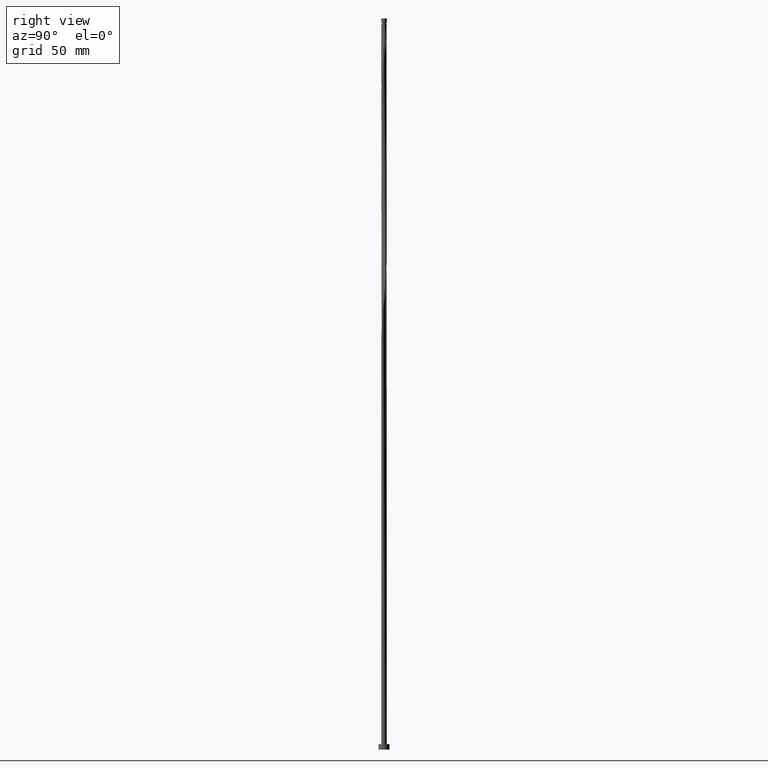
[diagram: clean part render]
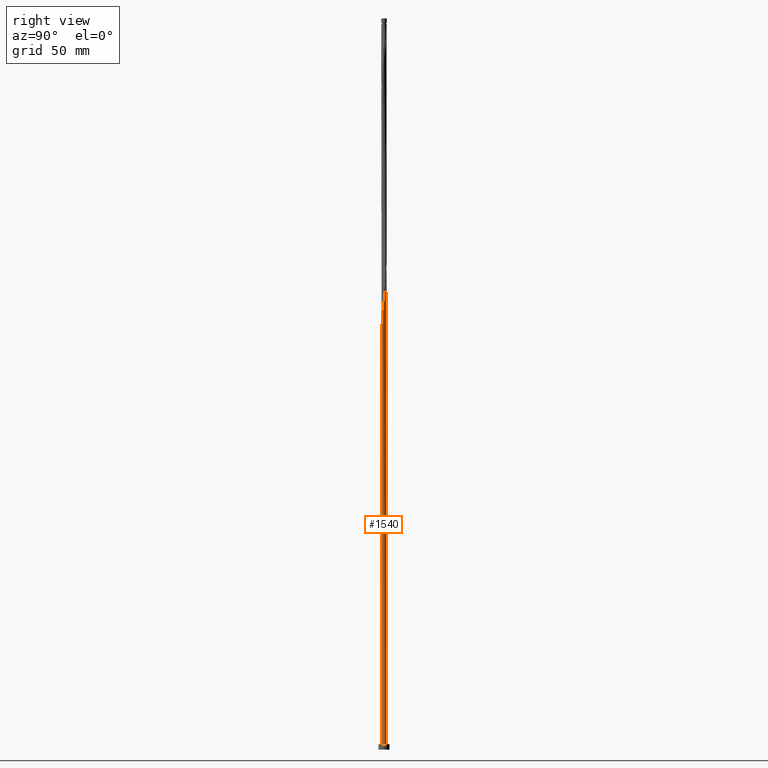
[diagram: same view with one face highlighted and labeled with its STEP entity id]
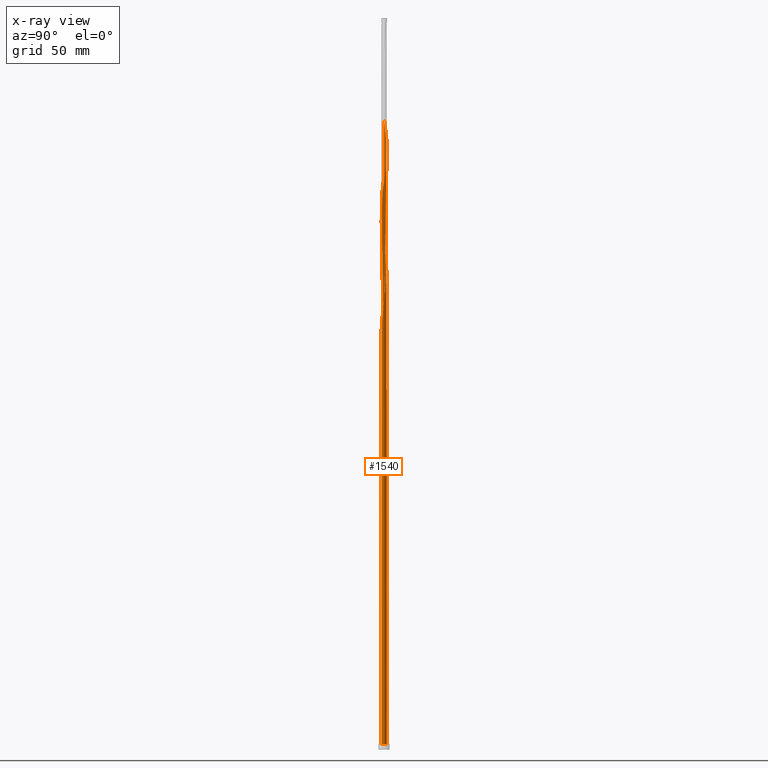
[diagram: x-ray of the same camera — body ghosted, the highlighted face saturated]
A machine part, right view. The second image highlights one B-rep face of the part: STEP entity #1540.
The next image is the same camera in x-ray: the body ghosted, the highlighted face saturated — about 0% of this face is hidden behind the body in this view.
In plain terms, the highlighted cylindrical surface (bore or boss wall) has radius 1.5 mm, axis along (-0, -0, -1).
Its self-contained STEP definition (entity closure, byte-faithful):
#10 = CARTESIAN_POINT ( 'NONE',  ( 1.372223850084356211, -0.6259850085017490962, 240.1915257951825993 ) ) ;
#17 = CARTESIAN_POINT ( 'NONE',  ( -0.4791193468187441296, -1.430139915222719438, 224.6359702396269995 ) ) ;
#35 = CARTESIAN_POINT ( 'NONE',  ( -0.1713066316759795926, -1.498502440289337212, 293.5248591285158568 ) ) ;
#45 = CARTESIAN_POINT ( 'NONE',  ( -0.8705927413954922534, 1.221502467713220463, 267.9693035729602570 ) ) ;
#48 = CARTESIAN_POINT ( 'NONE',  ( -1.305812670777218187, 0.7381417674387958927, 210.1915257951825993 ) ) ;
#57 = CARTESIAN_POINT ( 'NONE',  ( 0.01365681319226772807, 1.499937829196076544, 261.3026369062936283 ) ) ;
#72 = AXIS2_PLACEMENT_3D ( 'NONE', #147, #1607, #849 ) ;
#84 = CARTESIAN_POINT ( 'NONE',  ( 0.2984962311319902528, 1.469999999999999085, 196.8581924618492565 ) ) ;
#96 = DIRECTION ( 'NONE',  ( 0.000000000000000000, 0.000000000000000000, 1.000000000000000000 ) ) ;
#104 = CARTESIAN_POINT ( 'NONE',  ( -0.7422076586513574048, 1.313005452025443054, 333.5248591285159137 ) ) ;
#106 = CARTESIAN_POINT ( 'NONE',  ( -1.105532844612588717, 1.013803299206904596, 203.5248591285159137 ) ) ;
#115 = EDGE_CURVE ( 'NONE', #1210, #1116, #626, .T. ) ;
#117 = CARTESIAN_POINT ( 'NONE',  ( -1.383394496761529702, -0.6008953252765262265, 215.7470813507380853 ) ) ;
#128 = CARTESIAN_POINT ( 'NONE',  ( -0.7659922474358249467, -1.299273413288166035, 222.4137480174048562 ) ) ;
#147 = CARTESIAN_POINT ( 'NONE',  ( 0.000000000000000000, 0.000000000000000000, 3.000000000000000000 ) ) ;
#176 =( BOUNDED_CURVE ( )  B_SPLINE_CURVE ( 2, ( #551, #1147, #1587, #1717, #996, #253, #48, #1420, #537, #845, #231, #373, #1870, #828, #1562, #703, #223, #1131, #384 ),
 .UNSPECIFIED., .F., .T. ) 
 B_SPLINE_CURVE_WITH_KNOTS ( ( 3, 2, 2, 2, 2, 2, 2, 2, 2, 3 ),
 ( 0.9295286012773112949, 0.9333333333333333481, 0.9416666666666666519, 0.9499999999999999556, 0.9583333333333333703, 0.9666666666666666741, 0.9749999999999999778, 0.9833333333333332815, 0.9916666666666666963, 1.000000000000000000 ),
 .UNSPECIFIED. ) 
 CURVE ( )  GEOMETRIC_REPRESENTATION_ITEM ( )  RATIONAL_B_SPLINE_CURVE ( ( 0.9066196499552947596, 0.9068171577857073729, 0.9090909090910066492, 0.9041108139712544789, 0.9090909090910066492, 0.9041108139712544789, 0.9090909090910066492, 0.9041108139712544789, 0.9090909090910066492, 0.9041108139712544789, 0.9090909090910066492, 0.9041108139712544789, 0.9090909090910066492, 0.9041108139712544789, 0.9090909090910066492, 0.9041108139712544789, 0.9090909090910066492, 0.9041108139712544789, 0.9090909090910066492 ) ) 
 REPRESENTATION_ITEM ( '' )  );
#177 = CARTESIAN_POINT ( 'NONE',  ( -0.01365681319226751469, -1.499937829196076544, 294.6359702396269995 ) ) ;
#187 = CARTESIAN_POINT ( 'NONE',  ( 0.6225557971272843716, 1.364706664255443069, 323.5248591285158568 ) ) ;
#195 = CARTESIAN_POINT ( 'NONE',  ( 0.4529994569725341869, -1.438626781897188067, 297.9693035729603139 ) ) ;
#204 = CARTESIAN_POINT ( 'NONE',  ( -1.372223850084356211, 0.6259850085017488741, 273.5248591285159137 ) ) ;
#214 = CARTESIAN_POINT ( 'NONE',  ( -0.1439930052914443204, 1.501373218102816098, 329.0804146840714566 ) ) ;
#222 =( BOUNDED_CURVE ( )  B_SPLINE_CURVE ( 2, ( #635, #1236, #844, #1266, #530, #981, #106, #229, #1400, #1561, #1543, #953, #399, #1691, #1418 ),
 .UNSPECIFIED., .F., .T. ) 
 B_SPLINE_CURVE_WITH_KNOTS ( ( 3, 2, 2, 2, 2, 2, 2, 3 ),
 ( 0.000000000000000000, 0.008333333333333303727, 0.01666666666666671848, 0.02500000000000002220, 0.03333333333333332593, 0.04166666666666662966, 0.05000000000000004441, 0.05452860127731141288 ),
 .UNSPECIFIED. ) 
 CURVE ( )  GEOMETRIC_REPRESENTATION_ITEM ( )  RATIONAL_B_SPLINE_CURVE ( ( 0.9090909090910129775, 0.9041108139712609182, 0.9090909090910129775, 0.9041108139712609182, 0.9090909090910129775, 0.9041108139712609182, 0.9090909090910129775, 0.9041108139712609182, 0.9090909090910129775, 0.9041108139712609182, 0.9090909090910129775, 0.9041108139712609182, 0.9090909090910129775, 0.9063845652765600835, 0.9066196499553011989 ) ) 
 REPRESENTATION_ITEM ( '' )  );
#223 = CARTESIAN_POINT ( 'NONE',  ( -0.01365681319226663692, 1.499937829196074102, 199.0804146840714566 ) ) ;
#229 = CARTESIAN_POINT ( 'NONE',  ( -1.212087865085549776, 0.8976071150128108744, 204.6359702396270563 ) ) ;
#231 = CARTESIAN_POINT ( 'NONE',  ( -0.8926899293185865947, 1.205447920937763984, 205.7470813507381990 ) ) ;
#236 = FACE_OUTER_BOUND ( 'NONE', #496, .T. ) ;
#247 = DIRECTION ( 'NONE',  ( -1.000000000000000000, 0.000000000000000000, 0.000000000000000000 ) ) ;
#253 = CARTESIAN_POINT ( 'NONE',  ( -1.383394496761527037, 0.6008953252765258934, 211.3026369062936851 ) ) ;
#275 = CARTESIAN_POINT ( 'NONE',  ( -1.500000000000000222, 7.773176018745326149E-16, 215.6503023720374586 ) ) ;
#278 = CARTESIAN_POINT ( 'NONE',  ( 0.4529994569725341869, -1.438626781897188067, 231.3026369062936851 ) ) ;
#298 = CARTESIAN_POINT ( 'NONE',  ( 0.8705927413954920313, -1.221502467713221129, 234.6359702396269995 ) ) ;
#310 = CARTESIAN_POINT ( 'NONE',  ( -0.7659922474358249467, -1.299273413288166035, 289.0804146840715134 ) ) ;
#312 = LINE ( 'NONE', #761, #689 ) ;
#320 = CARTESIAN_POINT ( 'NONE',  ( 1.123809227997131455, 0.9935053190942145784, 319.0804146840713429 ) ) ;
#322 = DIRECTION ( 'NONE',  ( -0.000000000000000000, -0.000000000000000000, -1.000000000000000000 ) ) ;
#332 = CARTESIAN_POINT ( 'NONE',  ( -0.6225557971272842606, -1.364706664255443069, 290.1915257951825993 ) ) ;
#342 = CARTESIAN_POINT ( 'NONE',  ( 0.9989778241396267688, -1.129999483400998761, 302.4137480174047710 ) ) ;
#350 = CARTESIAN_POINT ( 'NONE',  ( -1.212087865085549776, 0.8976071150128108744, 271.3026369062937420 ) ) ;
#359 = VERTEX_POINT ( 'NONE', #275 ) ;
#365 = CARTESIAN_POINT ( 'NONE',  ( -0.2984962311319896422, 1.470000000000001084, 196.8581924618492565 ) ) ;
#373 = CARTESIAN_POINT ( 'NONE',  ( -0.7659922474358235034, 1.299273413288164702, 204.6359702396270279 ) ) ;
#378 = VERTEX_POINT ( 'NONE', #1432 ) ;
#384 = CARTESIAN_POINT ( 'NONE',  ( 0.2984962311319902528, 1.469999999999999085, 196.8581924618492565 ) ) ;
#391 = CARTESIAN_POINT ( 'NONE',  ( -0.5976035578119461844, 1.375816116961315005, 332.4137480174048278 ) ) ;
#399 = CARTESIAN_POINT ( 'NONE',  ( -1.490293487130534000, 0.1703681960235497728, 210.1915257951825140 ) ) ;
#402 = EDGE_CURVE ( 'NONE', #359, #683, #176, .T. ) ;
#410 = CARTESIAN_POINT ( 'NONE',  ( 0.6225557971272843716, 1.364706664255443069, 256.8581924618492280 ) ) ;
#422 = CARTESIAN_POINT ( 'NONE',  ( 0.7422076586513574048, -1.313005452025443276, 233.5248591285159137 ) ) ;
#432 = CARTESIAN_POINT ( 'NONE',  ( 1.228230844792911114, 0.8753882096010662250, 251.3026369062936851 ) ) ;
#436 = CARTESIAN_POINT ( 'NONE',  ( -1.500000000000000222, 0.000000000000000000, 3.000000000000000000 ) ) ;
#445 = CARTESIAN_POINT ( 'NONE',  ( 1.493148538522776292, 0.1432041965422210794, 245.7470813507380853 ) ) ;
#459 = CARTESIAN_POINT ( 'NONE',  ( 1.292155857584952328, -0.7617960617572802073, 305.7470813507380853 ) ) ;
#470 = CARTESIAN_POINT ( 'NONE',  ( 1.372223850084356211, -0.6259850085017490962, 306.8581924618493417 ) ) ;
#478 = CARTESIAN_POINT ( 'NONE',  ( -1.228230844792910892, -0.8753882096010667802, 284.6359702396269995 ) ) ;
#491 = CARTESIAN_POINT ( 'NONE',  ( -0.4791193468187441296, -1.430139915222719438, 291.3026369062936283 ) ) ;
#496 = EDGE_LOOP ( 'NONE', ( #1272, #1874, #1283, #543, #1100, #1359, #1138, #1769, #639 ) ) ;
#499 = CARTESIAN_POINT ( 'NONE',  ( 1.478097170958370121, 0.3001404318217207323, 313.5248591285159137 ) ) ;
#518 = DIRECTION ( 'NONE',  ( -1.000000000000000000, 0.000000000000000000, 0.000000000000000000 ) ) ;
#529 = CARTESIAN_POINT ( 'NONE',  ( -0.9989778241396271019, 1.129999483400998539, 335.7470813507380285 ) ) ;
#530 = CARTESIAN_POINT ( 'NONE',  ( -0.8705927413954922534, 1.221502467713220463, 201.3026369062936851 ) ) ;
#534 = CARTESIAN_POINT ( 'NONE',  ( -1.372223850084356211, 0.6259850085017488741, 340.1915257951825993 ) ) ;
#537 = CARTESIAN_POINT ( 'NONE',  ( -1.123809227997129234, 0.9935053190942145784, 207.9693035729603992 ) ) ;
#543 = ORIENTED_EDGE ( 'NONE', *, *, #1563, .T. ) ;
#545 = DIRECTION ( 'NONE',  ( -0.000000000000000000, -0.000000000000000000, -1.000000000000000000 ) ) ;
#551 = CARTESIAN_POINT ( 'NONE',  ( -1.500000000000000222, 7.773176018745325163E-16, 215.6503023720374586 ) ) ;
#572 = VECTOR ( 'NONE', #834, 1000.000000000000000 ) ;
#573 = CARTESIAN_POINT ( 'NONE',  ( 1.430745833859950134, 0.4505178785491230631, 247.9693035729603423 ) ) ;
#576 = EDGE_CURVE ( 'NONE', #378, #359, #312, .T. ) ;
#590 = CARTESIAN_POINT ( 'NONE',  ( 1.472387068173885982, -0.3270043533098239696, 242.4137480174047994 ) ) ;
#601 = CARTESIAN_POINT ( 'NONE',  ( 0.1439930052914451253, -1.501373218102815876, 229.0804146840714566 ) ) ;
#604 = EDGE_CURVE ( 'NONE', #1340, #1366, #222, .T. ) ;
#611 = CARTESIAN_POINT ( 'NONE',  ( -1.123809227997130566, -0.9935053190942152446, 285.7470813507380853 ) ) ;
#621 = CARTESIAN_POINT ( 'NONE',  ( -1.472387068173886204, 0.3270043533098230260, 275.7470813507380853 ) ) ;
#624 = CARTESIAN_POINT ( 'NONE',  ( -1.500000000000002220, -1.046389079446479054E-16, 211.3994158849943688 ) ) ;
#626 = CIRCLE ( 'NONE', #72, 1.500000000000000222 ) ;
#633 = CARTESIAN_POINT ( 'NONE',  ( 0.3252129892473625827, 1.464321177756027659, 259.0804146840714566 ) ) ;
#635 = CARTESIAN_POINT ( 'NONE',  ( -0.2984962311319896422, 1.470000000000001084, 196.8581924618492565 ) ) ;
#639 = ORIENTED_EDGE ( 'NONE', *, *, #402, .F. ) ;
#642 = CARTESIAN_POINT ( 'NONE',  ( 0.1439930052914451253, -1.501373218102815876, 295.7470813507380285 ) ) ;
#652 = CARTESIAN_POINT ( 'NONE',  ( -1.490293487130534000, 0.1703681960235497728, 276.8581924618491144 ) ) ;
#665 = CIRCLE ( 'NONE', #848, 1.500000000000000222 ) ;
#669 = CARTESIAN_POINT ( 'NONE',  ( -1.490293487130534000, 0.1703681960235497728, 343.5248591285158568 ) ) ;
#675 = CARTESIAN_POINT ( 'NONE',  ( -0.2984962311319896977, 1.470000000000001084, 330.1915257951825993 ) ) ;
#683 = VERTEX_POINT ( 'NONE', #84 ) ;
#689 = VECTOR ( 'NONE', #322, 1000.000000000000000 ) ;
#703 = CARTESIAN_POINT ( 'NONE',  ( -0.1713066316759788987, 1.498502440289334992, 200.1915257951825708 ) ) ;
#713 = CARTESIAN_POINT ( 'NONE',  ( 1.422305459129120875, -0.4764946809057865607, 241.3026369062936567 ) ) ;
#727 = CARTESIAN_POINT ( 'NONE',  ( -1.500000000000002220, -0.07176599893012591824, 211.9079644105584350 ) ) ;
#736 = CARTESIAN_POINT ( 'NONE',  ( -1.478097170958370121, -0.3001404318217209544, 213.5248591285159705 ) ) ;
#758 = CARTESIAN_POINT ( 'NONE',  ( 1.383394496761530146, 0.6008953252765254494, 315.7470813507381422 ) ) ;
#761 = CARTESIAN_POINT ( 'NONE',  ( -1.500000000000000222, 0.000000000000000000, 400.0000000000000000 ) ) ;
#769 = CARTESIAN_POINT ( 'NONE',  ( 1.105532844612588717, -1.013803299206904596, 303.5248591285159137 ) ) ;
#776 = CARTESIAN_POINT ( 'NONE',  ( 0.4791193468187441851, 1.430139915222719216, 324.6359702396270563 ) ) ;
#781 = EDGE_CURVE ( 'NONE', #1340, #683, #665, .T. ) ;
#788 = CARTESIAN_POINT ( 'NONE',  ( 1.212087865085549332, -0.8976071150128110965, 304.6359702396269427 ) ) ;
#800 = CARTESIAN_POINT ( 'NONE',  ( -1.019387611201352017, -1.111622428587364375, 286.8581924618491144 ) ) ;
#809 = CYLINDRICAL_SURFACE ( 'NONE', #1234, 1.500000000000000222 ) ;
#810 = DIRECTION ( 'NONE',  ( 0.000000000000000000, -0.000000000000000000, -1.000000000000000000 ) ) ;
#828 = CARTESIAN_POINT ( 'NONE',  ( -0.4791193468187426308, 1.430139915222717883, 202.4137480174048562 ) ) ;
#834 = DIRECTION ( 'NONE',  ( -0.000000000000000000, -0.000000000000000000, -1.000000000000000000 ) ) ;
#844 = CARTESIAN_POINT ( 'NONE',  ( -0.5976035578119461844, 1.375816116961315005, 199.0804146840714282 ) ) ;
#845 = CARTESIAN_POINT ( 'NONE',  ( -1.019387611201350685, 1.111622428587362599, 206.8581924618493133 ) ) ;
#848 = AXIS2_PLACEMENT_3D ( 'NONE', #990, #810, #247 ) ;
#849 = DIRECTION ( 'NONE',  ( 1.000000000000000000, 0.000000000000000000, 0.000000000000000000 ) ) ;
#864 = CARTESIAN_POINT ( 'NONE',  ( -1.430745833859950134, -0.4505178785491234517, 214.6359702396270563 ) ) ;
#871 = CARTESIAN_POINT ( 'NONE',  ( 1.478097170958370121, 0.3001404318217207323, 246.8581924618492280 ) ) ;
#880 =( BOUNDED_CURVE ( )  B_SPLINE_CURVE ( 2, ( #1344, #727, #1305, #736, #864, #117, #1619, #1025, #1324, #1450, #890, #128, #1183, #17, #1603, #1878, #1045, #601, #1163, #278, #1729, #422, #298, #1475, #1016, #1592, #1334, #10, #713, #590, #1313, #1747, #445, #871, #573, #1174, #1740, #432, #1036, #1192, #1002, #1205, #410, #1757, #633, #940, #57, #897, #1093, #1075, #1646, #1370, #45, #909, #1233, #350, #1496, #204, #1390, #621, #652, #1086, #1214, #1485, #1806, #1665, #1524, #478, #611, #800, #1380, #310, #332, #491, #1782, #35, #177, #642, #1815, #195, #1515, #1654, #1772, #342, #769, #788, #459, #470, #1056, #1225, #1241, #1362, #1629, #499, #1637, #758, #1353, #1062, #320, #1793, #919, #1506, #187, #776, #1842, #950, #989, #214, #675, #1850, #391, #104, #1140, #529, #979, #1858, #970, #534, #1568, #1404, #669, #1286, #1265 ),
 .UNSPECIFIED., .F., .T. ) 
 B_SPLINE_CURVE_WITH_KNOTS ( ( 3, 2, 2, 2, 2, 2, 2, 2, 2, 2, 2, 2, 2, 2, 2, 2, 2, 2, 2, 2, 2, 2, 2, 2, 2, 2, 2, 2, 2, 2, 2, 2, 2, 2, 2, 2, 2, 2, 2, 2, 2, 2, 2, 2, 2, 2, 2, 2, 2, 2, 2, 2, 2, 2, 2, 2, 2, 2, 2, 2, 2, 3 ),
 ( 0.05452860127731141288, 0.05833333333333334814, 0.06666666666666665186, 0.07499999999999995559, 0.08333333333333337034, 0.09166666666666667407, 0.09999999999999997780, 0.1083333333333332815, 0.1166666666666666963, 0.1250000000000000000, 0.1333333333333333037, 0.1416666666666667185, 0.1500000000000000222, 0.1583333333333333259, 0.1666666666666666297, 0.1750000000000000444, 0.1833333333333333481, 0.1916666666666666519, 0.1999999999999999556, 0.2083333333333333703, 0.2166666666666666741, 0.2249999999999999778, 0.2333333333333332815, 0.2416666666666666963, 0.2500000000000000000, 0.2583333333333333037, 0.2666666666666667185, 0.2750000000000000222, 0.2833333333333333259, 0.2916666666666666297, 0.3000000000000000444, 0.3083333333333333481, 0.3166666666666666519, 0.3249999999999999556, 0.3333333333333333703, 0.3416666666666666741, 0.3499999999999999778, 0.3583333333333332815, 0.3666666666666666963, 0.3750000000000000000, 0.3833333333333333037, 0.3916666666666667185, 0.4000000000000000222, 0.4083333333333333259, 0.4166666666666666297, 0.4250000000000000444, 0.4333333333333333481, 0.4416666666666666519, 0.4499999999999999556, 0.4583333333333333703, 0.4666666666666666741, 0.4749999999999999778, 0.4833333333333332815, 0.4916666666666666963, 0.5000000000000000000, 0.5083333333333333037, 0.5166666666666666075, 0.5250000000000000222, 0.5333333333333333259, 0.5416666666666667407, 0.5500000000000000444, 0.5545286012773112949 ),
 .UNSPECIFIED. ) 
 CURVE ( )  GEOMETRIC_REPRESENTATION_ITEM ( )  RATIONAL_B_SPLINE_CURVE ( ( 0.9066196499553011989, 0.9068171577857138121, 0.9090909090910129775, 0.9041108139712609182, 0.9090909090910129775, 0.9041108139712609182, 0.9090909090910129775, 0.9041108139712609182, 0.9090909090910129775, 0.9041108139712609182, 0.9090909090910129775, 0.9041108139712609182, 0.9090909090910129775, 0.9041108139712609182, 0.9090909090910129775, 0.9041108139712609182, 0.9090909090910129775, 0.9041108139712609182, 0.9090909090910129775, 0.9041108139712609182, 0.9090909090910129775, 0.9041108139712609182, 0.9090909090910129775, 0.9041108139712609182, 0.9090909090910129775, 0.9041108139712609182, 0.9090909090910129775, 0.9041108139712609182, 0.9090909090910129775, 0.9041108139712609182, 0.9090909090910129775, 0.9041108139712609182, 0.9090909090910129775, 0.9041108139712609182, 0.9090909090910129775, 0.9041108139712609182, 0.9090909090910129775, 0.9041108139712609182, 0.9090909090910129775, 0.9041108139712609182, 0.9090909090910129775, 0.9041108139712609182, 0.9090909090910129775, 0.9041108139712609182, 0.9090909090910129775, 0.9041108139712609182, 0.9090909090910129775, 0.9041108139712609182, 0.9090909090910129775, 0.9041108139712609182, 0.9090909090910129775, 0.9041108139712609182, 0.9090909090910129775, 0.9041108139712609182, 0.9090909090910129775, 0.9041108139712609182, 0.9090909090910129775, 0.9041108139712609182, 0.9090909090910129775, 0.9041108139712609182, 0.9090909090910129775, 0.9041108139712609182, 0.9090909090910129775, 0.9041108139712609182, 0.9090909090910129775, 0.9041108139712609182, 0.9090909090910129775, 0.9041108139712609182, 0.9090909090910129775, 0.9041108139712609182, 0.9090909090910129775, 0.9041108139712609182, 0.9090909090910129775, 0.9041108139712609182, 0.9090909090910129775, 0.9041108139712609182, 0.9090909090910129775, 0.9041108139712609182, 0.9090909090910129775, 0.9041108139712609182, 0.9090909090910129775, 0.9041108139712609182, 0.9090909090910129775, 0.9041108139712609182, 0.9090909090910129775, 0.9041108139712609182, 0.9090909090910129775, 0.9041108139712609182, 0.9090909090910129775, 0.9041108139712609182, 0.9090909090910129775, 0.9041108139712609182, 0.9090909090910129775, 0.9041108139712609182, 0.9090909090910129775, 0.9041108139712609182, 0.9090909090910129775, 0.9041108139712609182, 0.9090909090910129775, 0.9041108139712609182, 0.9090909090910129775, 0.9041108139712609182, 0.9090909090910129775, 0.9041108139712609182, 0.9090909090910129775, 0.9041108139712609182, 0.9090909090910129775, 0.9041108139712609182, 0.9090909090910129775, 0.9041108139712609182, 0.9090909090910129775, 0.9041108139712609182, 0.9090909090910129775, 0.9041108139712609182, 0.9090909090910129775, 0.9041108139712609182, 0.9090909090910129775, 0.9041108139712609182, 0.9090909090910129775, 0.9041108139712609182, 0.9090909090910129775, 0.9063845652765600835, 0.9066196499553011989 ) ) 
 REPRESENTATION_ITEM ( '' )  );
#890 = CARTESIAN_POINT ( 'NONE',  ( -0.8926899293185884821, -1.205447920937764428, 221.3026369062936851 ) ) ;
#897 = CARTESIAN_POINT ( 'NONE',  ( -0.1439930052914443204, 1.501373218102816098, 262.4137480174047710 ) ) ;
#909 = CARTESIAN_POINT ( 'NONE',  ( -0.9989778241396271019, 1.129999483400998539, 269.0804146840714566 ) ) ;
#919 = CARTESIAN_POINT ( 'NONE',  ( 0.8926899293185888151, 1.205447920937764206, 321.3026369062936851 ) ) ;
#940 = CARTESIAN_POINT ( 'NONE',  ( 0.1713066316759798424, 1.498502440289337212, 260.1915257951825993 ) ) ;
#950 = CARTESIAN_POINT ( 'NONE',  ( 0.1713066316759798424, 1.498502440289337212, 326.8581924618492849 ) ) ;
#953 = CARTESIAN_POINT ( 'NONE',  ( -1.472387068173886204, 0.3270043533098230260, 209.0804146840714850 ) ) ;
#960 = CARTESIAN_POINT ( 'NONE',  ( 0.000000000000000000, 0.000000000000000000, 400.0000000000000000 ) ) ;
#970 = CARTESIAN_POINT ( 'NONE',  ( -1.292155857584952328, 0.7617960617572798743, 339.0804146840713997 ) ) ;
#977 = AXIS2_PLACEMENT_3D ( 'NONE', #1541, #96, #1710 ) ;
#979 = CARTESIAN_POINT ( 'NONE',  ( -1.105532844612588717, 1.013803299206904596, 336.8581924618491712 ) ) ;
#981 = CARTESIAN_POINT ( 'NONE',  ( -0.9989778241396271019, 1.129999483400998539, 202.4137480174047710 ) ) ;
#989 = CARTESIAN_POINT ( 'NONE',  ( 0.01365681319226772807, 1.499937829196076544, 327.9693035729604276 ) ) ;
#990 = CARTESIAN_POINT ( 'NONE',  ( 0.000000000000000000, 0.000000000000000000, 196.8581924618492849 ) ) ;
#996 = CARTESIAN_POINT ( 'NONE',  ( -1.430745833859947913, 0.4505178785491236182, 212.4137480174047994 ) ) ;
#1002 = CARTESIAN_POINT ( 'NONE',  ( 0.8926899293185888151, 1.205447920937764206, 254.6359702396269711 ) ) ;
#1016 = CARTESIAN_POINT ( 'NONE',  ( 1.105532844612588717, -1.013803299206904596, 236.8581924618491996 ) ) ;
#1025 = CARTESIAN_POINT ( 'NONE',  ( -1.228230844792910892, -0.8753882096010667802, 217.9693035729603992 ) ) ;
#1036 = CARTESIAN_POINT ( 'NONE',  ( 1.123809227997131455, 0.9935053190942145784, 252.4137480174047994 ) ) ;
#1045 = CARTESIAN_POINT ( 'NONE',  ( -0.01365681319226751469, -1.499937829196076544, 227.9693035729604276 ) ) ;
#1056 = CARTESIAN_POINT ( 'NONE',  ( 1.422305459129120875, -0.4764946809057865607, 307.9693035729603707 ) ) ;
#1062 = CARTESIAN_POINT ( 'NONE',  ( 1.228230844792911114, 0.8753882096010662250, 317.9693035729602570 ) ) ;
#1075 = CARTESIAN_POINT ( 'NONE',  ( -0.4529994569725346309, 1.438626781897187179, 264.6359702396269995 ) ) ;
#1086 = CARTESIAN_POINT ( 'NONE',  ( -1.508199906087182240, 0.01373203873727684224, 277.9693035729603707 ) ) ;
#1093 = CARTESIAN_POINT ( 'NONE',  ( -0.2984962311319896977, 1.470000000000001084, 263.5248591285158568 ) ) ;
#1100 = ORIENTED_EDGE ( 'NONE', *, *, #115, .T. ) ;
#1116 = VERTEX_POINT ( 'NONE', #436 ) ;
#1131 = CARTESIAN_POINT ( 'NONE',  ( 0.1439930052914456249, 1.501373218102813878, 197.9693035729603992 ) ) ;
#1138 = ORIENTED_EDGE ( 'NONE', *, *, #604, .F. ) ;
#1140 = CARTESIAN_POINT ( 'NONE',  ( -0.8705927413954922534, 1.221502467713220463, 334.6359702396269995 ) ) ;
#1147 = CARTESIAN_POINT ( 'NONE',  ( -1.500000000000000444, 0.07176599893012436393, 215.1417538464734776 ) ) ;
#1163 = CARTESIAN_POINT ( 'NONE',  ( 0.2984962311319898087, -1.470000000000001084, 230.1915257951825424 ) ) ;
#1174 = CARTESIAN_POINT ( 'NONE',  ( 1.383394496761530146, 0.6008953252765254494, 249.0804146840714850 ) ) ;
#1183 = CARTESIAN_POINT ( 'NONE',  ( -0.6225557971272842606, -1.364706664255443069, 223.5248591285158568 ) ) ;
#1192 = CARTESIAN_POINT ( 'NONE',  ( 1.019387611201352017, 1.111622428587364375, 253.5248591285159705 ) ) ;
#1205 = CARTESIAN_POINT ( 'NONE',  ( 0.7659922474358256128, 1.299273413288165369, 255.7470813507381422 ) ) ;
#1210 = VERTEX_POINT ( 'NONE', #1776 ) ;
#1214 = CARTESIAN_POINT ( 'NONE',  ( -1.493148538522776292, -0.1432041965422218566, 279.0804146840714566 ) ) ;
#1225 = CARTESIAN_POINT ( 'NONE',  ( 1.472387068173885982, -0.3270043533098239696, 309.0804146840715703 ) ) ;
#1233 = CARTESIAN_POINT ( 'NONE',  ( -1.105532844612588717, 1.013803299206904596, 270.1915257951825424 ) ) ;
#1234 = AXIS2_PLACEMENT_3D ( 'NONE', #960, #545, #518 ) ;
#1236 = CARTESIAN_POINT ( 'NONE',  ( -0.4529994569725346309, 1.438626781897187179, 197.9693035729603707 ) ) ;
#1241 = CARTESIAN_POINT ( 'NONE',  ( 1.490293487130534222, -0.1703681960235499393, 310.1915257951824856 ) ) ;
#1265 = CARTESIAN_POINT ( 'NONE',  ( -1.500000000000002220, 1.016492248605150609E-15, 344.7327492183276831 ) ) ;
#1266 = CARTESIAN_POINT ( 'NONE',  ( -0.7422076586513574048, 1.313005452025443054, 200.1915257951825993 ) ) ;
#1272 = ORIENTED_EDGE ( 'NONE', *, *, #576, .F. ) ;
#1273 = CARTESIAN_POINT ( 'NONE',  ( -1.500000000000000222, 0.000000000000000000, 400.0000000000000000 ) ) ;
#1283 = ORIENTED_EDGE ( 'NONE', *, *, #1758, .T. ) ;
#1286 = CARTESIAN_POINT ( 'NONE',  ( -1.500000000000001776, 0.08546060616964964995, 344.1271579089431611 ) ) ;
#1305 = CARTESIAN_POINT ( 'NONE',  ( -1.493148538522776292, -0.1432041965422218566, 212.4137480174047994 ) ) ;
#1313 = CARTESIAN_POINT ( 'NONE',  ( 1.490293487130534222, -0.1703681960235499393, 243.5248591285159137 ) ) ;
#1324 = CARTESIAN_POINT ( 'NONE',  ( -1.123809227997130566, -0.9935053190942152446, 219.0804146840714566 ) ) ;
#1334 = CARTESIAN_POINT ( 'NONE',  ( 1.292155857584952328, -0.7617960617572802073, 239.0804146840714566 ) ) ;
#1340 = VERTEX_POINT ( 'NONE', #365 ) ;
#1344 = CARTESIAN_POINT ( 'NONE',  ( -1.500000000000002220, -1.046389079446479054E-16, 211.3994158849943688 ) ) ;
#1353 = CARTESIAN_POINT ( 'NONE',  ( 1.305812670777220186, 0.7381417674387962258, 316.8581924618492280 ) ) ;
#1359 = ORIENTED_EDGE ( 'NONE', *, *, #1758, .F. ) ;
#1362 = CARTESIAN_POINT ( 'NONE',  ( 1.508199906087182462, -0.01373203873727731929, 311.3026369062936851 ) ) ;
#1366 = VERTEX_POINT ( 'NONE', #624 ) ;
#1370 = CARTESIAN_POINT ( 'NONE',  ( -0.7422076586513574048, 1.313005452025443054, 266.8581924618492280 ) ) ;
#1380 = CARTESIAN_POINT ( 'NONE',  ( -0.8926899293185884821, -1.205447920937764428, 287.9693035729603707 ) ) ;
#1390 = CARTESIAN_POINT ( 'NONE',  ( -1.422305459129120875, 0.4764946809057860611, 274.6359702396270563 ) ) ;
#1400 = CARTESIAN_POINT ( 'NONE',  ( -1.292155857584952328, 0.7617960617572798743, 205.7470813507380853 ) ) ;
#1404 = CARTESIAN_POINT ( 'NONE',  ( -1.472387068173886204, 0.3270043533098230260, 342.4137480174046573 ) ) ;
#1418 = CARTESIAN_POINT ( 'NONE',  ( -1.500000000000002220, -1.046389079446479054E-16, 211.3994158849943688 ) ) ;
#1420 = CARTESIAN_POINT ( 'NONE',  ( -1.228230844792908449, 0.8753882096010660030, 209.0804146840715418 ) ) ;
#1432 = CARTESIAN_POINT ( 'NONE',  ( -1.500000000000002220, 1.016492248605150609E-15, 344.7327492183276831 ) ) ;
#1450 = CARTESIAN_POINT ( 'NONE',  ( -1.019387611201352017, -1.111622428587364375, 220.1915257951825993 ) ) ;
#1475 = CARTESIAN_POINT ( 'NONE',  ( 0.9989778241396267688, -1.129999483400998761, 235.7470813507381138 ) ) ;
#1485 = CARTESIAN_POINT ( 'NONE',  ( -1.478097170958370121, -0.3001404318217209544, 280.1915257951825424 ) ) ;
#1496 = CARTESIAN_POINT ( 'NONE',  ( -1.292155857584952328, 0.7617960617572798743, 272.4137480174048278 ) ) ;
#1506 = CARTESIAN_POINT ( 'NONE',  ( 0.7659922474358256128, 1.299273413288165369, 322.4137480174047710 ) ) ;
#1509 = EDGE_CURVE ( 'NONE', #1366, #378, #880, .T. ) ;
#1515 = CARTESIAN_POINT ( 'NONE',  ( 0.5976035578119457403, -1.375816116961315005, 299.0804146840713997 ) ) ;
#1524 = CARTESIAN_POINT ( 'NONE',  ( -1.305812670777220186, -0.7381417674387964478, 283.5248591285158568 ) ) ;
#1540 = ADVANCED_FACE ( 'NONE', ( #236 ), #809, .T. ) ;
#1541 = CARTESIAN_POINT ( 'NONE',  ( 0.000000000000000000, 0.000000000000000000, 3.000000000000000000 ) ) ;
#1543 = CARTESIAN_POINT ( 'NONE',  ( -1.422305459129120875, 0.4764946809057860611, 207.9693035729603707 ) ) ;
#1561 = CARTESIAN_POINT ( 'NONE',  ( -1.372223850084356211, 0.6259850085017488741, 206.8581924618491996 ) ) ;
#1562 = CARTESIAN_POINT ( 'NONE',  ( -0.3252129892473606398, 1.464321177756026326, 201.3026369062937135 ) ) ;
#1563 = EDGE_CURVE ( 'NONE', #1116, #1210, #1584, .T. ) ;
#1568 = CARTESIAN_POINT ( 'NONE',  ( -1.422305459129120875, 0.4764946809057860611, 341.3026369062936283 ) ) ;
#1584 = CIRCLE ( 'NONE', #977, 1.500000000000000222 ) ;
#1587 = CARTESIAN_POINT ( 'NONE',  ( -1.493148538522774071, 0.1432041965422224949, 214.6359702396270848 ) ) ;
#1592 = CARTESIAN_POINT ( 'NONE',  ( 1.212087865085549332, -0.8976071150128110965, 237.9693035729603423 ) ) ;
#1603 = CARTESIAN_POINT ( 'NONE',  ( -0.3252129892473617501, -1.464321177756028103, 225.7470813507381138 ) ) ;
#1607 = DIRECTION ( 'NONE',  ( 0.000000000000000000, 0.000000000000000000, 1.000000000000000000 ) ) ;
#1619 = CARTESIAN_POINT ( 'NONE',  ( -1.305812670777220186, -0.7381417674387964478, 216.8581924618492280 ) ) ;
#1629 = CARTESIAN_POINT ( 'NONE',  ( 1.493148538522776292, 0.1432041965422210794, 312.4137480174047141 ) ) ;
#1637 = CARTESIAN_POINT ( 'NONE',  ( 1.430745833859950134, 0.4505178785491230631, 314.6359702396269995 ) ) ;
#1646 = CARTESIAN_POINT ( 'NONE',  ( -0.5976035578119461844, 1.375816116961315005, 265.7470813507380853 ) ) ;
#1654 = CARTESIAN_POINT ( 'NONE',  ( 0.7422076586513574048, -1.313005452025443276, 300.1915257951825993 ) ) ;
#1665 = CARTESIAN_POINT ( 'NONE',  ( -1.383394496761529702, -0.6008953252765262265, 282.4137480174047710 ) ) ;
#1691 = CARTESIAN_POINT ( 'NONE',  ( -1.500000000000001998, 0.08546060616964742951, 210.7938245756097331 ) ) ;
#1697 = LINE ( 'NONE', #1273, #572 ) ;
#1710 = DIRECTION ( 'NONE',  ( 1.000000000000000000, 0.000000000000000000, 0.000000000000000000 ) ) ;
#1717 = CARTESIAN_POINT ( 'NONE',  ( -1.478097170958368123, 0.3001404318217210099, 213.5248591285159989 ) ) ;
#1729 = CARTESIAN_POINT ( 'NONE',  ( 0.5976035578119457403, -1.375816116961315005, 232.4137480174047994 ) ) ;
#1740 = CARTESIAN_POINT ( 'NONE',  ( 1.305812670777220186, 0.7381417674387962258, 250.1915257951825140 ) ) ;
#1747 = CARTESIAN_POINT ( 'NONE',  ( 1.508199906087182462, -0.01373203873727731929, 244.6359702396269995 ) ) ;
#1757 = CARTESIAN_POINT ( 'NONE',  ( 0.4791193468187441851, 1.430139915222719216, 257.9693035729603139 ) ) ;
#1758 = EDGE_CURVE ( 'NONE', #1366, #1116, #1697, .T. ) ;
#1769 = ORIENTED_EDGE ( 'NONE', *, *, #781, .T. ) ;
#1772 = CARTESIAN_POINT ( 'NONE',  ( 0.8705927413954920313, -1.221502467713221129, 301.3026369062936851 ) ) ;
#1776 = CARTESIAN_POINT ( 'NONE',  ( 1.500000000000000222, 0.000000000000000000, 3.000000000000000000 ) ) ;
#1782 = CARTESIAN_POINT ( 'NONE',  ( -0.3252129892473617501, -1.464321177756028103, 292.4137480174047710 ) ) ;
#1793 = CARTESIAN_POINT ( 'NONE',  ( 1.019387611201352017, 1.111622428587364375, 320.1915257951825424 ) ) ;
#1806 = CARTESIAN_POINT ( 'NONE',  ( -1.430745833859950134, -0.4505178785491234517, 281.3026369062936851 ) ) ;
#1815 = CARTESIAN_POINT ( 'NONE',  ( 0.2984962311319898087, -1.470000000000001084, 296.8581924618492849 ) ) ;
#1842 = CARTESIAN_POINT ( 'NONE',  ( 0.3252129892473625827, 1.464321177756027659, 325.7470813507379717 ) ) ;
#1850 = CARTESIAN_POINT ( 'NONE',  ( -0.4529994569725346309, 1.438626781897187179, 331.3026369062935714 ) ) ;
#1858 = CARTESIAN_POINT ( 'NONE',  ( -1.212087865085549776, 0.8976071150128108744, 337.9693035729603139 ) ) ;
#1870 = CARTESIAN_POINT ( 'NONE',  ( -0.6225557971272831503, 1.364706664255441293, 203.5248591285159421 ) ) ;
#1874 = ORIENTED_EDGE ( 'NONE', *, *, #1509, .F. ) ;
#1878 = CARTESIAN_POINT ( 'NONE',  ( -0.1713066316759795926, -1.498502440289337212, 226.8581924618492565 ) ) ;